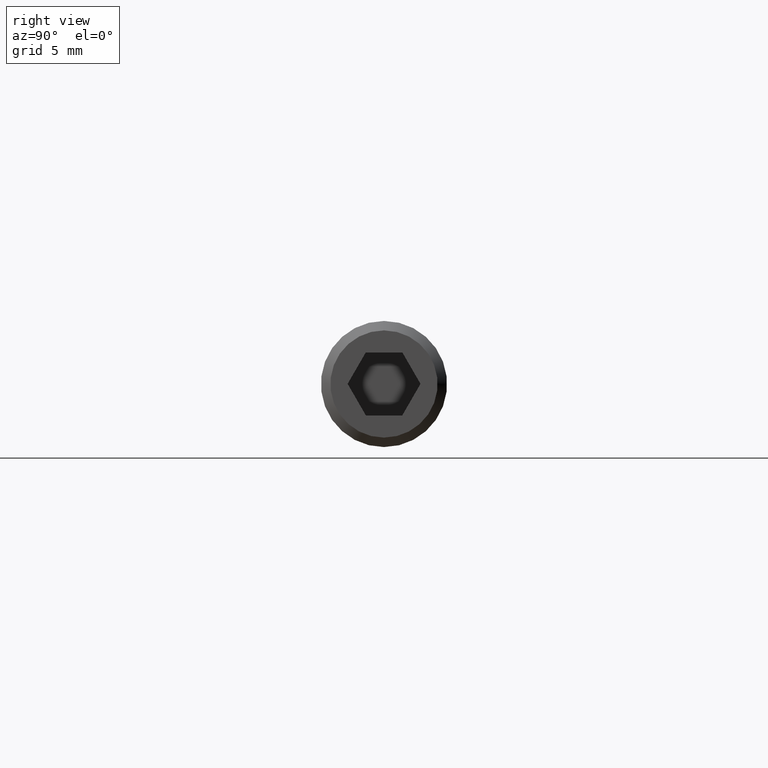
[diagram: clean part render]
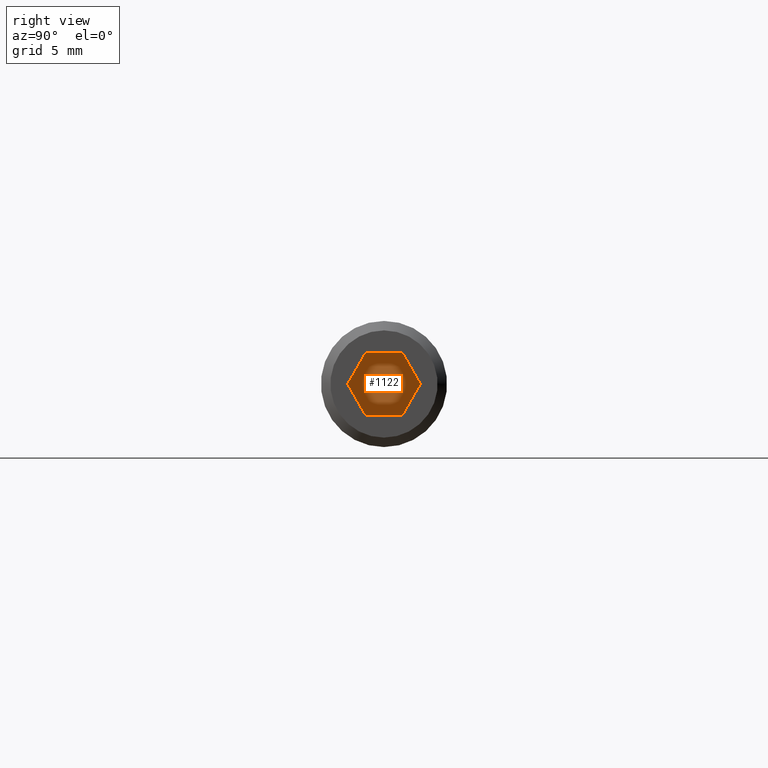
[diagram: same view with one face highlighted and labeled with its STEP entity id]
A machine part, right view. The second image highlights one B-rep face of the part: STEP entity #1122.
In plain terms, the highlighted planar face has unit normal (1, -0, 0).
Its self-contained STEP definition (entity closure, byte-faithful):
#636 = DIRECTION ( 'NONE',  ( 1.000000000000000000, -0.0000000000000000000, 0.0000000000000000000 ) ) ;
#921 = VERTEX_POINT ( 'NONE', #5880 ) ;
#1079 = CARTESIAN_POINT ( 'NONE',  ( 40.00000000000000000, -1.154700538379251000, 1.999999999999999600 ) ) ;
#1122 = ADVANCED_FACE ( 'NONE', ( #11544 ), #8773, .T. ) ;
#1333 = ORIENTED_EDGE ( 'NONE', *, *, #11050, .T. ) ;
#1389 = ORIENTED_EDGE ( 'NONE', *, *, #6506, .T. ) ;
#1431 = LINE ( 'NONE', #9378, #4050 ) ;
#1514 = LINE ( 'NONE', #6528, #5013 ) ;
#1719 = EDGE_CURVE ( 'NONE', #6306, #11008, #1431, .T. ) ;
#1813 = VERTEX_POINT ( 'NONE', #5600 ) ;
#2017 = DIRECTION ( 'NONE',  ( 0.0000000000000000000, 0.4999999999999995600, -0.8660254037844389300 ) ) ;
#2498 = CARTESIAN_POINT ( 'NONE',  ( 40.00000000000000000, 1.154700538379252100, 1.999999999999999600 ) ) ;
#3093 = VECTOR ( 'NONE', #5784, 1000.000000000000100 ) ;
#3277 = VECTOR ( 'NONE', #9827, 1000.000000000000000 ) ;
#3540 = VERTEX_POINT ( 'NONE', #9450 ) ;
#3735 = AXIS2_PLACEMENT_3D ( 'NONE', #7847, #636, #5414 ) ;
#4050 = VECTOR ( 'NONE', #2017, 1000.000000000000000 ) ;
#4129 = ORIENTED_EDGE ( 'NONE', *, *, #4178, .T. ) ;
#4178 = EDGE_CURVE ( 'NONE', #921, #7549, #11518, .T. ) ;
#4380 = LINE ( 'NONE', #1079, #3093 ) ;
#4936 = CARTESIAN_POINT ( 'NONE',  ( 40.00000000000000000, -1.154700538379252400, -2.000000000000000000 ) ) ;
#5013 = VECTOR ( 'NONE', #8413, 1000.000000000000000 ) ;
#5360 = VECTOR ( 'NONE', #7059, 1000.000000000000100 ) ;
#5414 = DIRECTION ( 'NONE',  ( 0.0000000000000000000, 0.0000000000000000000, -1.000000000000000000 ) ) ;
#5600 = CARTESIAN_POINT ( 'NONE',  ( 40.00000000000000000, -1.154700538379251000, 1.999999999999999600 ) ) ;
#5784 = DIRECTION ( 'NONE',  ( 0.0000000000000000000, -0.4999999999999999400, -0.8660254037844386000 ) ) ;
#5880 = CARTESIAN_POINT ( 'NONE',  ( 40.00000000000000000, 2.309401076758503400, -1.190619091596349400E-015 ) ) ;
#5921 = EDGE_CURVE ( 'NONE', #3540, #921, #11129, .T. ) ;
#6306 = VERTEX_POINT ( 'NONE', #9896 ) ;
#6506 = EDGE_CURVE ( 'NONE', #7549, #1813, #8463, .T. ) ;
#6528 = CARTESIAN_POINT ( 'NONE',  ( 40.00000000000000000, -1.154700538379252400, -2.000000000000000000 ) ) ;
#6624 = VECTOR ( 'NONE', #10636, 1000.000000000000000 ) ;
#6872 = EDGE_LOOP ( 'NONE', ( #1333, #8569, #7225, #8302, #4129, #1389 ) ) ;
#7048 = EDGE_CURVE ( 'NONE', #11008, #3540, #1514, .T. ) ;
#7059 = DIRECTION ( 'NONE',  ( 0.0000000000000000000, 0.4999999999999999400, 0.8660254037844386000 ) ) ;
#7225 = ORIENTED_EDGE ( 'NONE', *, *, #7048, .T. ) ;
#7428 = CARTESIAN_POINT ( 'NONE',  ( 40.00000000000000000, 1.154700538379252100, 1.999999999999999600 ) ) ;
#7549 = VERTEX_POINT ( 'NONE', #7428 ) ;
#7847 = CARTESIAN_POINT ( 'NONE',  ( 40.00000000000000000, -3.464101615137753900, -2.000000000000000000 ) ) ;
#8302 = ORIENTED_EDGE ( 'NONE', *, *, #5921, .T. ) ;
#8413 = DIRECTION ( 'NONE',  ( 0.0000000000000000000, 1.000000000000000000, 0.0000000000000000000 ) ) ;
#8463 = LINE ( 'NONE', #2498, #3277 ) ;
#8569 = ORIENTED_EDGE ( 'NONE', *, *, #1719, .T. ) ;
#8773 = PLANE ( 'NONE',  #3735 ) ;
#9378 = CARTESIAN_POINT ( 'NONE',  ( 40.00000000000000000, -2.309401076758502500, 1.256016596573813500E-016 ) ) ;
#9450 = CARTESIAN_POINT ( 'NONE',  ( 40.00000000000000000, 1.154700538379252400, -2.000000000000000000 ) ) ;
#9827 = DIRECTION ( 'NONE',  ( 0.0000000000000000000, -1.000000000000000000, 0.0000000000000000000 ) ) ;
#9896 = CARTESIAN_POINT ( 'NONE',  ( 40.00000000000000000, -2.309401076758502500, 1.256016596573813500E-016 ) ) ;
#10608 = CARTESIAN_POINT ( 'NONE',  ( 40.00000000000000000, 1.154700538379252400, -2.000000000000000000 ) ) ;
#10636 = DIRECTION ( 'NONE',  ( 0.0000000000000000000, -0.4999999999999997200, 0.8660254037844388200 ) ) ;
#10713 = CARTESIAN_POINT ( 'NONE',  ( 40.00000000000000000, 2.309401076758503400, -1.190619091596349400E-015 ) ) ;
#11008 = VERTEX_POINT ( 'NONE', #4936 ) ;
#11050 = EDGE_CURVE ( 'NONE', #1813, #6306, #4380, .T. ) ;
#11129 = LINE ( 'NONE', #10608, #5360 ) ;
#11518 = LINE ( 'NONE', #10713, #6624 ) ;
#11544 = FACE_OUTER_BOUND ( 'NONE', #6872, .T. ) ;